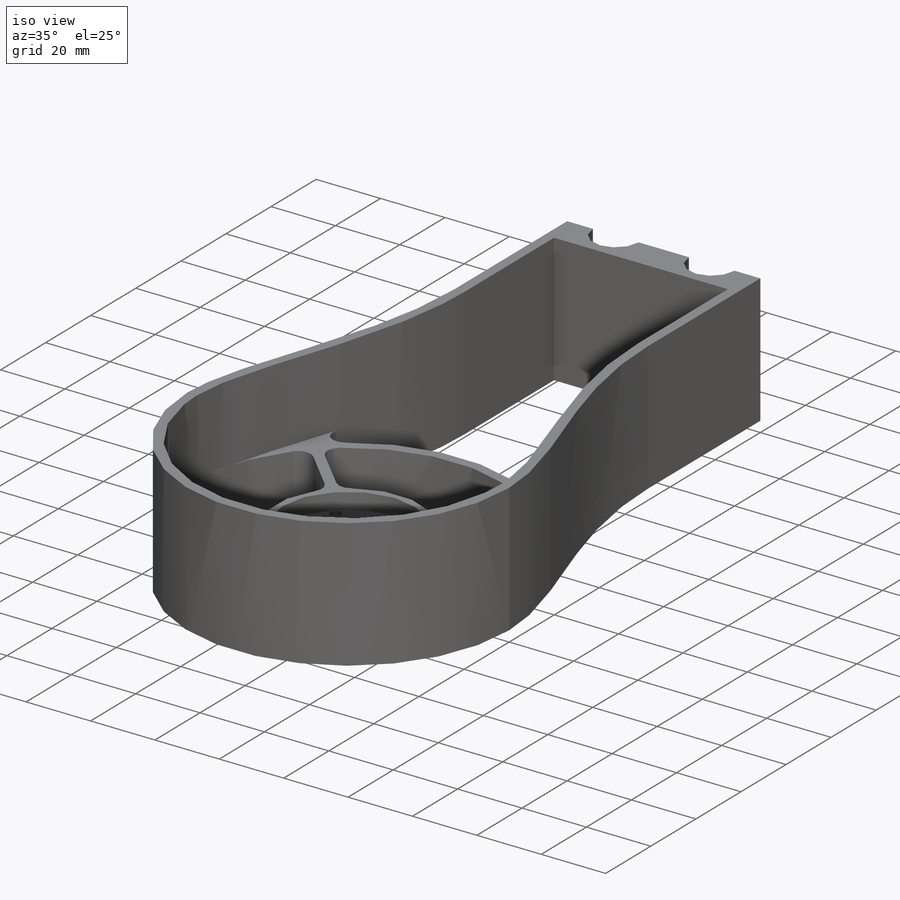
[diagram: iso view]
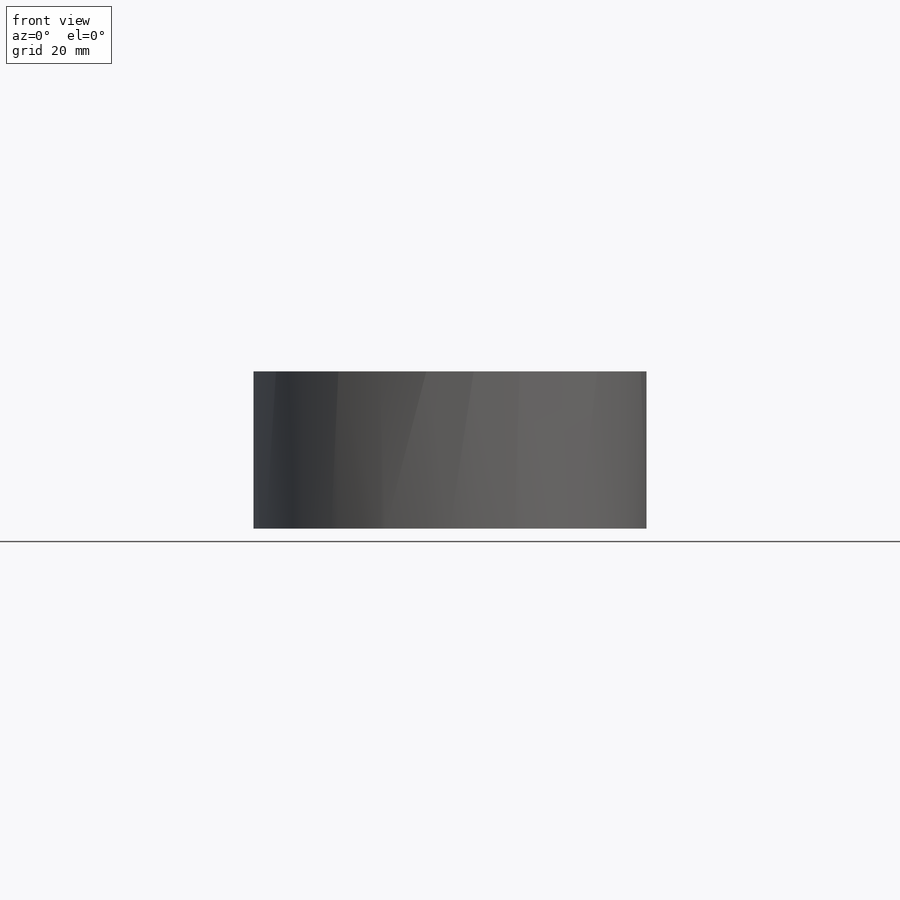
[diagram: front view]
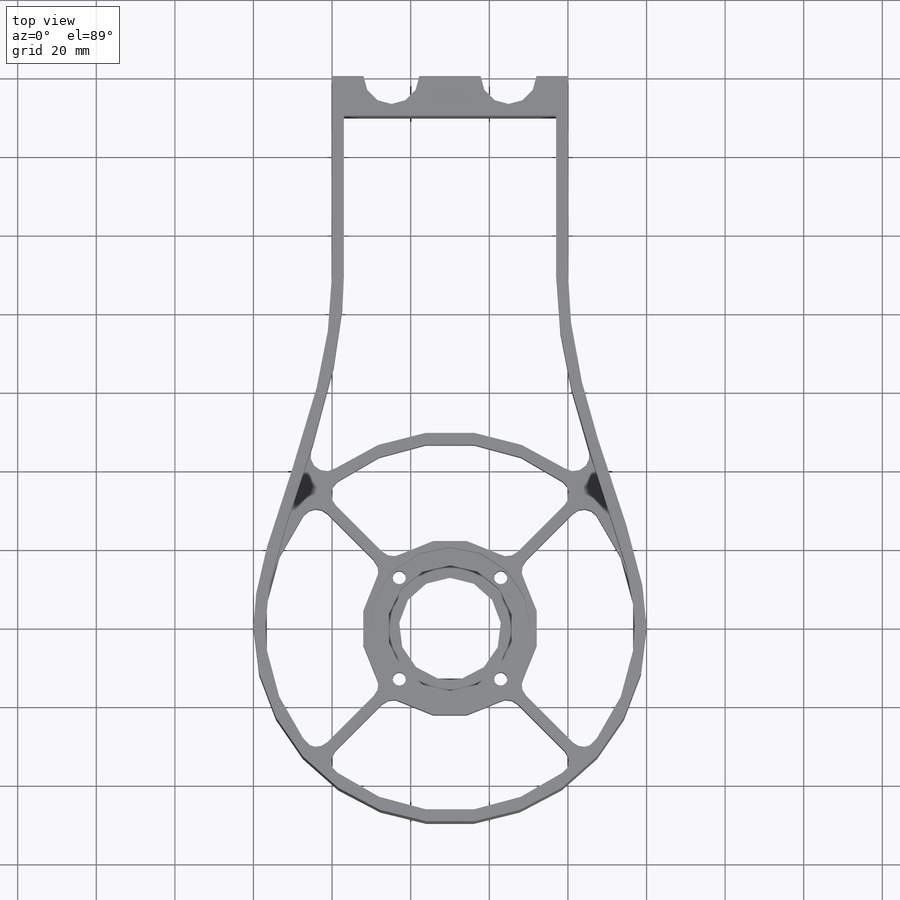
[diagram: top view]
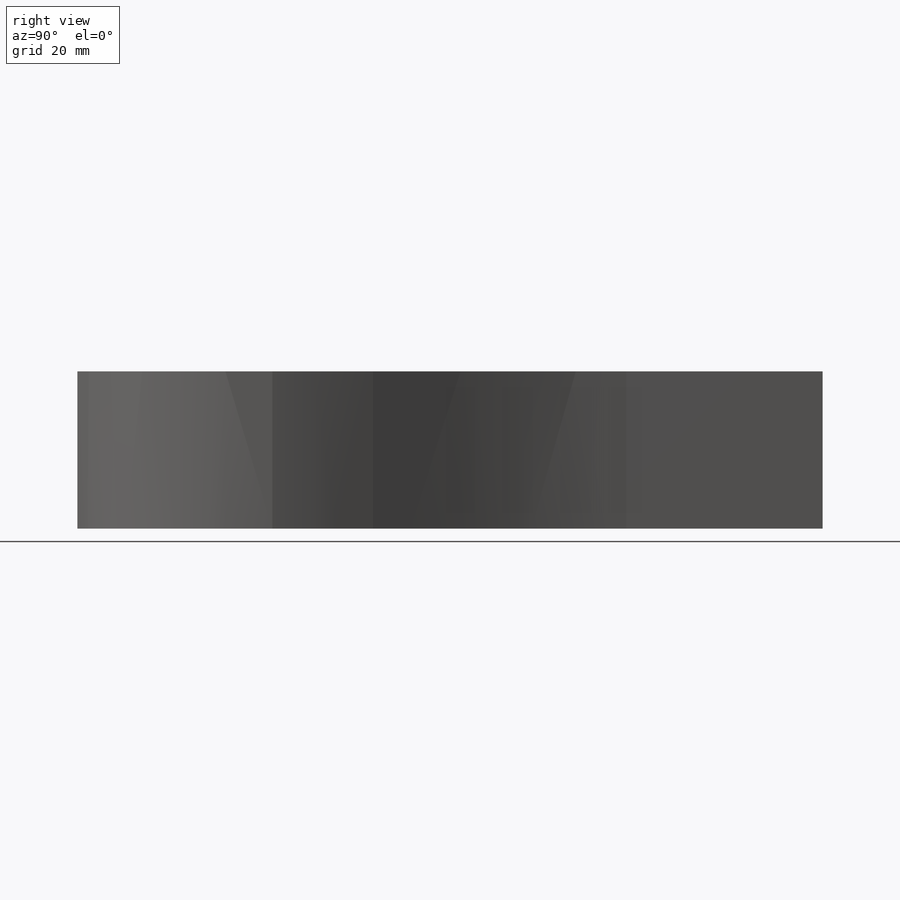
[diagram: right view]
SOLIDWORKS PART (.sldprt)
format: sldprt  version: not decoded by parser v0  size: 501,760 bytes
history: native  units: mm
features: sketch x11, extrude x5, cut_extrude x3, fillet x2, material x1, hole x1 (+11 scaffold rows collapsed)
feature tree (34):
  scaffold x11  (default folders/planes/origin — collapsed)
  material  "3.1355 (EN-AW 2024)"
  sketch  "Эскиз1"  dims[D3=7.1mm D5=94.0mm D6=100.0mm D1=60.0mm D2=8.0mm D4=140.0mm]
  extrude  "Бобышка-Вытянуть1"  Depth=40mm
  sketch  "Эскиз2"  dims[D1=0.0mm D2=3.0mm]
  cut_extrude  "Вырез-Вытянуть1"  [1 undecoded]
  sketch  "Эскиз3"  dims[D1=26.0mm D2=45.0mm]
  extrude  "Бобышка-Вытянуть2"  Depth=16mm
  sketch  "Эскиз4"  dims[D1=41.0mm D2=45.0mm]
  cut_extrude  "Вырез-Вытянуть2"  Depth=5mm
  sketch  "Эскиз5"  dims[D1=32.0mm]
  cut_extrude  "Вырез-Вытянуть3"  Depth=10mm
  sketch  "Эскиз6"  dims[c1.D1=36.5mm c1.D2=~13.321108mm c2.D2=45.0deg c2.D3=4.0]
  hole  "Отверстие с зазором M31"  [1 undecoded]
  sketch  "Эскиз8"
  sketch  "Эскиз7"  dims[hole-wizard template sketch: 61 standard entries collapsed; hole parameters above]
  sketch  "Эскиз9"
  extrude  "Бобышка-Вытянуть3"  [1 undecoded]
  sketch  "Эскиз10"  dims[c1.D1=47.0mm c2.D1=45.0deg c2.D2=1.5mm c2.D3=1.5mm c3.D2=4.0]
  extrude  "Бобышка-Вытянуть4"  [1 undecoded]
  fillet  "Скругление1"  Radius=4mm
  fillet  "Скругление2"  Radius=4mm
  sketch  "Эскиз11"
  extrude  "Бобышка-Вытянуть5"  [1 undecoded]
decode coverage: 14 of 22 modeling features carry decoded parameters
note: ~ marks probable driven/reference dimensions
note: 5 parameter values undecoded
summary: no parameter record found for 5 features
note: suppression state not decoded; provenance and decode notes live in map.json
